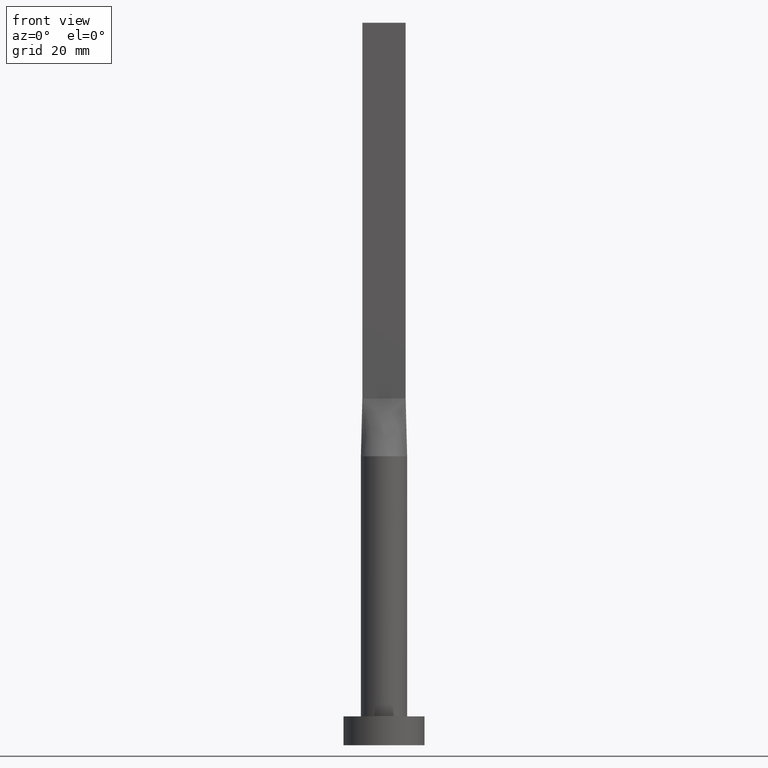
[diagram: clean part render]
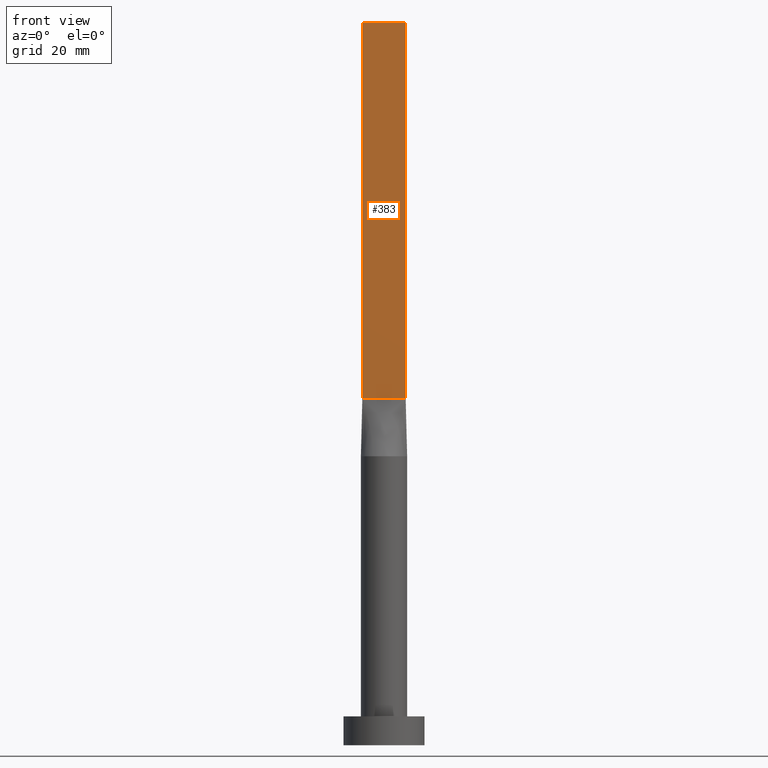
[diagram: same view with one face highlighted and labeled with its STEP entity id]
A machine part, front view. The second image highlights one B-rep face of the part: STEP entity #383.
In plain terms, the highlighted planar face has unit normal (0, 1, -0).
Its self-contained STEP definition (entity closure, byte-faithful):
#6 = DIRECTION ( 'NONE',  ( -0.000000000000000000, -0.000000000000000000, -1.000000000000000000 ) ) ;
#11 = CARTESIAN_POINT ( 'NONE',  ( 3.750000000000000000, -0.5999999999999997558, 125.0000000000000000 ) ) ;
#60 = CARTESIAN_POINT ( 'NONE',  ( -3.750000000000000000, -0.5999999999999993117, 60.00000000000000000 ) ) ;
#88 = ORIENTED_EDGE ( 'NONE', *, *, #571, .F. ) ;
#100 = ORIENTED_EDGE ( 'NONE', *, *, #349, .F. ) ;
#103 = DIRECTION ( 'NONE',  ( -1.000000000000000000, 5.782411586589357392E-17, 0.000000000000000000 ) ) ;
#136 = CARTESIAN_POINT ( 'NONE',  ( -3.750000000000000000, -0.5999999999999993117, 60.00000000000000000 ) ) ;
#145 = FACE_OUTER_BOUND ( 'NONE', #350, .T. ) ;
#164 = VERTEX_POINT ( 'NONE', #525 ) ;
#196 = DIRECTION ( 'NONE',  ( 5.782411586589357392E-17, 1.000000000000000000, -0.000000000000000000 ) ) ;
#200 = LINE ( 'NONE', #548, #546 ) ;
#218 = CARTESIAN_POINT ( 'NONE',  ( 3.750000000000000000, -0.5999999999999997558, 125.0000000000000000 ) ) ;
#223 = ORIENTED_EDGE ( 'NONE', *, *, #581, .T. ) ;
#224 = AXIS2_PLACEMENT_3D ( 'NONE', #284, #196, #103 ) ;
#229 = DIRECTION ( 'NONE',  ( 1.000000000000000000, -5.782411586589357392E-17, 0.000000000000000000 ) ) ;
#240 = LINE ( 'NONE', #11, #552 ) ;
#244 = VECTOR ( 'NONE', #356, 1000.000000000000000 ) ;
#246 = EDGE_CURVE ( 'NONE', #386, #363, #262, .T. ) ;
#262 = LINE ( 'NONE', #136, #244 ) ;
#274 = VERTEX_POINT ( 'NONE', #218 ) ;
#275 = CARTESIAN_POINT ( 'NONE',  ( -3.750000000000000000, -0.5999999999999993117, 125.0000000000000000 ) ) ;
#284 = CARTESIAN_POINT ( 'NONE',  ( -3.750000000000000000, -0.5999999999999993117, 125.0000000000000000 ) ) ;
#349 = EDGE_CURVE ( 'NONE', #164, #274, #502, .T. ) ;
#350 = EDGE_LOOP ( 'NONE', ( #393, #88, #100, #223 ) ) ;
#356 = DIRECTION ( 'NONE',  ( 1.000000000000000000, -5.782411586589357392E-17, 0.000000000000000000 ) ) ;
#363 = VERTEX_POINT ( 'NONE', #404 ) ;
#383 = ADVANCED_FACE ( 'NONE', ( #145 ), #456, .F. ) ;
#386 = VERTEX_POINT ( 'NONE', #60 ) ;
#393 = ORIENTED_EDGE ( 'NONE', *, *, #246, .T. ) ;
#404 = CARTESIAN_POINT ( 'NONE',  ( 3.750000000000000000, -0.5999999999999997558, 60.00000000000000000 ) ) ;
#405 = DIRECTION ( 'NONE',  ( -0.000000000000000000, -0.000000000000000000, -1.000000000000000000 ) ) ;
#432 = VECTOR ( 'NONE', #229, 1000.000000000000000 ) ;
#456 = PLANE ( 'NONE',  #224 ) ;
#502 = LINE ( 'NONE', #275, #432 ) ;
#525 = CARTESIAN_POINT ( 'NONE',  ( -3.750000000000000000, -0.5999999999999993117, 125.0000000000000000 ) ) ;
#546 = VECTOR ( 'NONE', #405, 1000.000000000000000 ) ;
#548 = CARTESIAN_POINT ( 'NONE',  ( -3.750000000000000000, -0.5999999999999993117, 125.0000000000000000 ) ) ;
#552 = VECTOR ( 'NONE', #6, 1000.000000000000000 ) ;
#571 = EDGE_CURVE ( 'NONE', #274, #363, #240, .T. ) ;
#581 = EDGE_CURVE ( 'NONE', #164, #386, #200, .T. ) ;